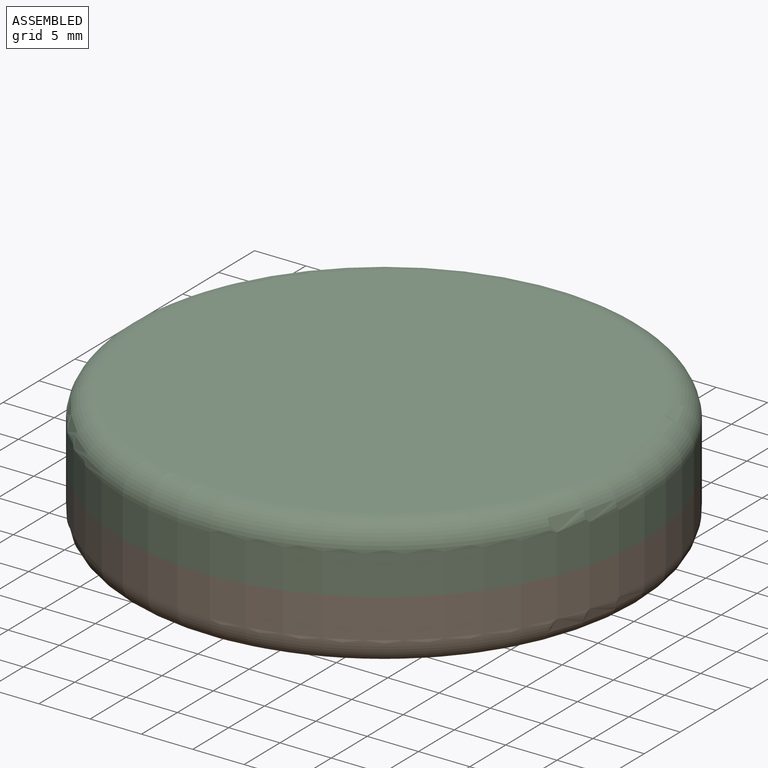
[diagram: assembled view]
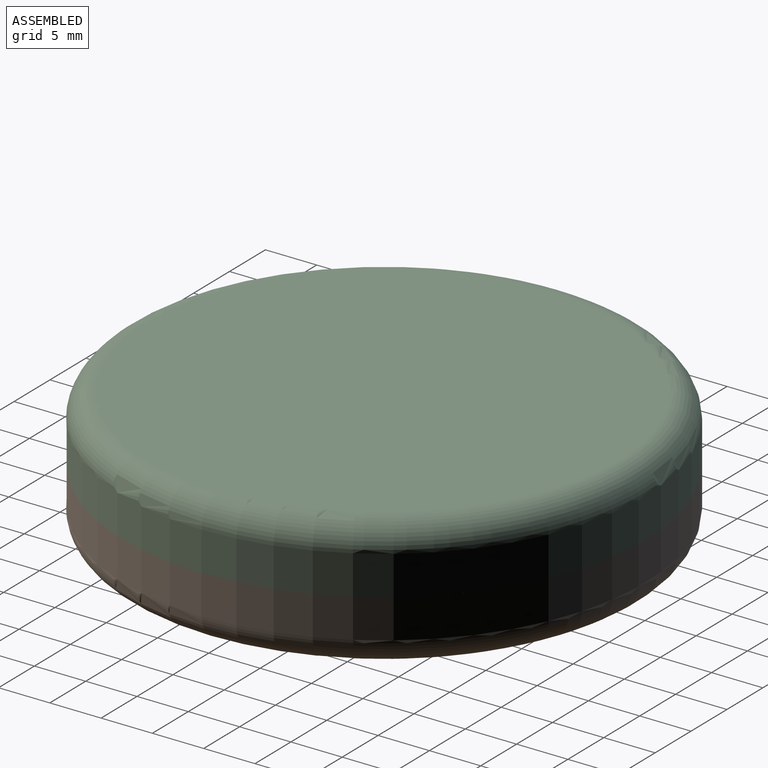
[diagram: assembled view, second angle]
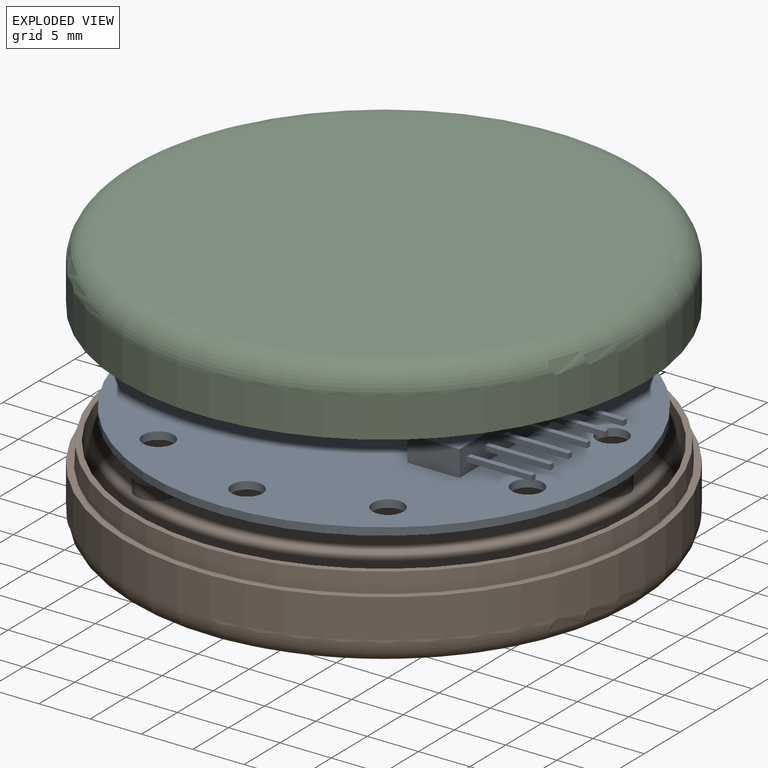
[diagram: exploded view]
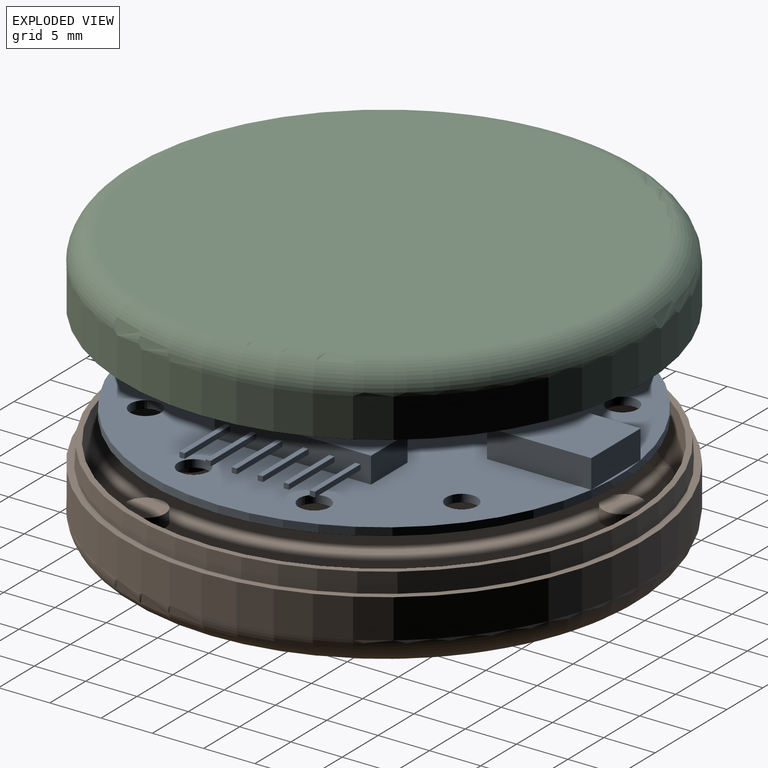
[diagram: exploded view, second angle]
ASSEMBLY  parts=3 mates=5
PART A: 58 faces, bbox 45.7x45.7x7.1 mm
  f0: plane 6.35x0.51mm, normal (-1,0,0), area 3.2mm2, adj f1,f3,f4,f45
  f1: plane 6.35x0.51mm, normal (0,0,1), area 3.2mm2, adj f0,f2,f4,f45
  f2: plane 6.35x0.51mm, normal (1,0,0), area 3.2mm2, adj f1,f3,f4,f45
  f3: plane 6.35x0.51mm, normal (0,0,-1), area 3.2mm2, adj f0,f2,f4,f45
  f4: plane 0.51x0.51mm, normal (0,1,0), area 0.3mm2, adj f0,f1,f2,f3
  f5: plane 6.35x0.51mm, normal (-1,0,0), area 3.2mm2, adj f6,f8,f9,f45
  f6: plane 6.35x0.51mm, normal (0,0,1), area 3.2mm2, adj f5,f7,f9,f45
  f7: plane 6.35x0.51mm, normal (1,0,0), area 3.2mm2, adj f6,f8,f9,f45
  f8: plane 6.35x0.51mm, normal (0,0,-1), area 3.2mm2, adj f5,f7,f9,f45
  f9: plane 0.51x0.51mm, normal (0,1,0), area 0.3mm2, adj f5,f6,f7,f8
  f10: plane 6.35x0.51mm, normal (-1,0,0), area 3.2mm2, adj f11,f13,f14,f45
  f11: plane 6.35x0.51mm, normal (0,0,1), area 3.2mm2, adj f10,f12,f14,f45
  f12: plane 6.35x0.51mm, normal (1,0,0), area 3.2mm2, adj f11,f13,f14,f45
  f13: plane 6.35x0.51mm, normal (0,0,-1), area 3.2mm2, adj f10,f12,f14,f45
  f14: plane 0.51x0.51mm, normal (0,1,0), area 0.3mm2, adj f10,f11,f12,f13
  f15: plane 6.35x0.51mm, normal (-1,0,0), area 3.2mm2, adj f16,f18,f19,f45
  f16: plane 6.35x0.51mm, normal (0,0,1), area 3.2mm2, adj f15,f17,f19,f45
  f17: plane 6.35x0.51mm, normal (1,0,0), area 3.2mm2, adj f16,f18,f19,f45
  f18: plane 6.35x0.51mm, normal (0,0,-1), area 3.2mm2, adj f15,f17,f19,f45
  f19: plane 0.51x0.51mm, normal (0,1,0), area 0.3mm2, adj f15,f16,f17,f18
  f20: plane 6.35x0.51mm, normal (-1,0,0), area 3.2mm2, adj f21,f23,f24,f45
  f21: plane 6.35x0.51mm, normal (0,0,1), area 3.2mm2, adj f20,f22,f24,f45
  f22: plane 6.35x0.51mm, normal (1,0,0), area 3.2mm2, adj f21,f23,f24,f45
  f23: plane 6.35x0.51mm, normal (0,0,-1), area 3.2mm2, adj f20,f22,f24,f45
  f24: plane 0.51x0.51mm, normal (0,1,0), area 0.3mm2, adj f20,f21,f22,f23
  f25: plane 45.72x45.46mm, normal (0,0,1), area 1381.4mm2, adj f27,f29,f30,f31,f32,f33,f34,f35
  f26: plane 6.86x0.26mm, normal (0,0,1), area 1.2mm2, adj f27,f41
  f27: cylinder r=22.86mm len=45.72mm, axis (0,0,-1), area 109.4mm2, adj f25,f26,f28
  f28: plane 45.72x45.72mm, normal (0,0,-1), area 1578.1mm2, adj f27,f29,f30,f31,f32,f33,f34,f35
  f29: cylinder r=1.5mm len=3mm, axis (0,0,1), area 7.2mm2, adj f25,f28
  f30: cylinder r=1.5mm len=3mm, axis (0,0,1), area 7.2mm2, adj f25,f28
  f31: cylinder r=1.5mm len=3mm, axis (0,0,1), area 7.2mm2, adj f25,f28
  f32: cylinder r=1.5mm len=3mm, axis (0,0,1), area 7.2mm2, adj f25,f28
  f33: cylinder r=1.5mm len=3mm, axis (0,0,1), area 7.2mm2, adj f25,f28
  f34: cylinder r=1.5mm len=3mm, axis (0,0,1), area 7.2mm2, adj f25,f28
  f35: cylinder r=1.5mm len=3mm, axis (0,0,1), area 7.2mm2, adj f25,f28
  f36: cylinder r=1.5mm len=3mm, axis (0,0,1), area 7.2mm2, adj f25,f28
  f37: cylinder r=1.5mm len=3mm, axis (0,0,1), area 7.2mm2, adj f25,f28
  f38: plane 10.16x2.79mm, normal (0,-1,0), area 28.4mm2, adj f25,f39,f41,f42
  f39: plane 6.86x2.79mm, normal (1,0,0), area 19.2mm2, adj f25,f38,f40,f42
  f40: plane 10.16x2.79mm, normal (0,1,0), area 28.4mm2, adj f25,f39,f41,f42
  f41: plane 6.86x2.79mm, normal (-1,0,0), area 19.2mm2, adj f26,f38,f40,f42
  f42: plane 10.16x6.86mm, normal (0,0,1), area 69.7mm2, adj f38,f39,f40,f41
  f43: plane 15.24x2.54mm, normal (0,-1,0), area 38.7mm2, adj f25,f44,f46,f47
  f44: plane 5.08x2.54mm, normal (1,0,0), area 12.9mm2, adj f25,f43,f45,f47
  f45: plane 15.24x2.54mm, normal (0,1,0), area 37.2mm2, adj f0,f1,f2,f3,f5,f6,f7,f8
  f46: plane 5.08x2.54mm, normal (-1,0,0), area 12.9mm2, adj f25,f43,f45,f47
  f47: plane 15.24x5.08mm, normal (0,0,1), area 77.4mm2, adj f43,f44,f45,f46
  f48: plane 6.35x0.51mm, normal (-1,0,0), area 3.2mm2, adj f45,f49,f51,f52
  f49: plane 6.35x0.51mm, normal (0,0,1), area 3.2mm2, adj f45,f48,f50,f52
  f50: plane 6.35x0.51mm, normal (1,0,0), area 3.2mm2, adj f45,f49,f51,f52
  f51: plane 6.35x0.51mm, normal (0,0,-1), area 3.2mm2, adj f45,f48,f50,f52
  f52: plane 0.51x0.51mm, normal (0,1,0), area 0.3mm2, adj f48,f49,f50,f51
  f53: plane 7.62x6.35mm, normal (0,-1,0), area 48.4mm2, adj f25,f54,f56,f57
  f54: plane 6.35x6.35mm, normal (1,0,0), area 40.3mm2, adj f25,f53,f55,f57
  f55: plane 7.62x6.35mm, normal (0,1,0), area 48.4mm2, adj f25,f54,f56,f57
  f56: plane 6.35x6.35mm, normal (-1,0,0), area 40.3mm2, adj f25,f53,f55,f57
  f57: plane 7.62x6.35mm, normal (0,0,1), area 48.4mm2, adj f53,f54,f55,f56
PART B: 27 faces, bbox 55x55x8.3 mm
  f0: cylinder r=1.91mm len=3.81mm, axis (0,0,-1), area 15.2mm2, adj f1,f16
  f1: plane 3.81x3.81mm, normal (0,0,1), area 11.4mm2, adj f0
  f2: cylinder r=1.91mm len=3.81mm, axis (0,0,-1), area 15.2mm2, adj f3,f16
  f3: plane 3.81x3.81mm, normal (0,0,1), area 11.4mm2, adj f2
  f4: cylinder r=1.91mm len=3.81mm, axis (0,0,-1), area 15.2mm2, adj f5,f16
  f5: plane 3.81x3.81mm, normal (0,0,1), area 11.4mm2, adj f4
  f6: cylinder r=1.91mm len=3.81mm, axis (0,0,-1), area 15.2mm2, adj f7,f16
  f7: plane 3.81x3.81mm, normal (0,0,1), area 11.4mm2, adj f6
  f8: cylinder r=1.91mm len=3.81mm, axis (0,0,-1), area 15.2mm2, adj f9,f16
  f9: plane 3.81x3.81mm, normal (0,0,1), area 11.4mm2, adj f8
  f10: cylinder r=1.91mm len=3.81mm, axis (0,0,-1), area 15.2mm2, adj f11,f16
  f11: plane 3.81x3.81mm, normal (0,0,1), area 11.4mm2, adj f10
  f12: cylinder r=1.91mm len=3.81mm, axis (0,0,-1), area 15.2mm2, adj f13,f16
  f13: plane 3.81x3.81mm, normal (0,0,1), area 11.4mm2, adj f12
  f14: cylinder r=1.91mm len=3.81mm, axis (0,0,-1), area 15.2mm2, adj f15,f16
  f15: plane 3.81x3.81mm, normal (0,0,1), area 11.4mm2, adj f14
  f16: plane 45.72x45.72mm, normal (0,0,1), area 1539.1mm2, adj f0,f2,f4,f6,f8,f10,f12,f14
  f17: torus R=22.86mm, axis (0,0,1), area 296.7mm2, adj f16,f18
  f18: cylinder r=24.13mm len=48.26mm, axis (0,0,-1), area 866.5mm2, adj f17,f23
  f19: cylinder r=25.4mm len=50.8mm, axis (0,0,-1), area 608mm2, adj f21,f22
  f20: plane 45.72x45.72mm, normal (0,0,-1), area 1641.7mm2, adj f21
  f21: torus R=22.86mm, axis (0,0,1), area 613.6mm2, adj f19,f20
  f22: plane 50.8x50.8mm, normal (0,0,1), area 100.1mm2, adj f19,f24
  f23: plane 49.33x49.33mm, normal (0,0,1), area 82mm2, adj f18,f24
  f24: cone r=24.77mm half-angle=3deg, axis (0,0,-1), area 296.2mm2, adj f22,f23
  f25: cylinder r=1.91mm len=3.81mm, axis (0,0,-1), area 15.2mm2, adj f16,f26
  f26: plane 3.81x3.81mm, normal (0,0,1), area 11.4mm2, adj f25
PART C: 9 faces, bbox 55x55x6.4 mm
  f0: plane 45.72x45.72mm, normal (0,0,1), area 1641.7mm2, adj f1
  f1: torus R=22.86mm, axis (0,0,1), area 613.6mm2, adj f0,f2
  f2: cylinder r=25.4mm len=50.8mm, axis (0,0,-1), area 608mm2, adj f1,f3
  f3: plane 50.8x50.8mm, normal (0,0,-1), area 80.3mm2, adj f2,f4
  f4: cone r=24.89mm half-angle=3deg, axis (0,0,-1), area 317.6mm2, adj f3,f5
  f5: plane 49.57x49.57mm, normal (0,0,-1), area 100.7mm2, adj f4,f8
  f6: plane 45.72x45.72mm, normal (0,0,-1), area 1641.7mm2, adj f7
  f7: torus R=22.86mm, axis (0,0,1), area 296.7mm2, adj f6,f8
  f8: cylinder r=24.13mm len=48.26mm, axis (0,0,-1), area 269.6mm2, adj f5,f7
PLACE A rot(axis=(0,0,-1),90deg) t=(-9.38,10.01,42.53)mm
PLACE B t=(-9.38,10.01,46.34)mm
PLACE C t=(-9.38,10.01,46.34)mm
MATE planar C.f1 <-> B.f17  axis (0,0,-1) through (-9.38,10.01,46.34)mm
MATE cylindrical B.f17 <-> C.f1  axis (0,0,-1) through (-9.38,10.01,44.44)mm
MATE planar A.f28 <-> B.f25  axis (0,0,-1) through (-9.38,10.1,42.53)mm
MATE cylindrical B.f25 <-> A.f29  axis (0,0,-1) through (-9.38,-9.04,41.9)mm
MATE cylindrical A.f37 <-> B.f0  axis (0,0,1) through (1.82,25.42,42.91)mm
